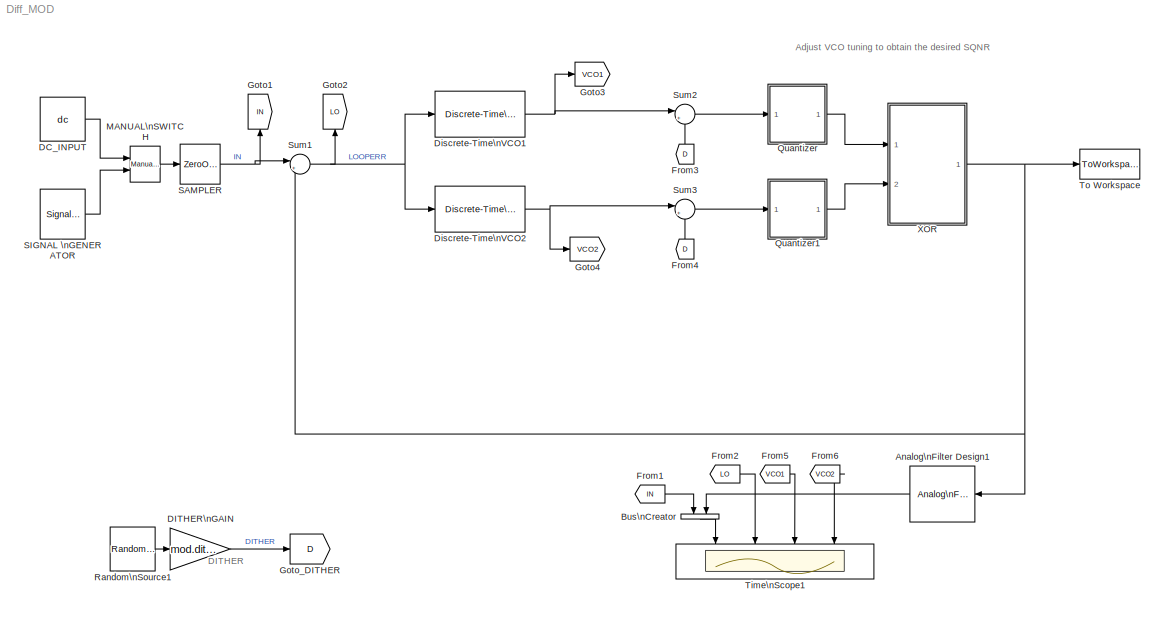
MODEL Diff_MOD
KIND model
BLOCK [Reference] Analog\nFilter Design1  REF=dsparch4/Analog\nFilter Design
  N = 8
  Ports = [1, 1]
  Rp = 2
  Rs = 40
  SID = 627
  SourceBlock = dsparch4/Analog\nFilter Design
  SourceType = Analog Filter Design
  Whi = 80
  Wlo = pi*(Fs/OSR)
  filttype = Lowpass
  method = Butterworth
BLOCK [BusCreator] Bus\nCreator
  DisplayOption = bar
  Inputs = 2
  Ports = [2, 1]
  SID = 635
BLOCK [Constant] DC_INPUT
  OutDataTypeStr = double
  SID = 630
  SampleTime = 1/Fs
  Value = dc
BLOCK [Gain] DITHER\nGAIN
  Gain = mod.dither
  OutDataTypeStr = Inherit: Inherit via internal rule
  ParamDataTypeStr = Inherit: Inherit via internal rule
  SID = 622
  SampleTime = 1/Fs
  SaturateOnIntegerOverflow = off
BLOCK [Reference] Discrete-Time\nVCO1  REF=commsynccomp2/Discrete-Time\nVCO
  Ac = sinamp*2
  Fc = Fs/2
  Kc = sinfreq*24
  Ph = 0
  Ports = [1, 1]
  SID = 423
  SourceBlock = commsynccomp2/Discrete-Time\nVCO
  SourceType = Discrete-Time VCO
  ts = 1/Fs
BLOCK [Reference] Discrete-Time\nVCO2  REF=commsynccomp2/Discrete-Time\nVCO
  Ac = -sinamp*2
  Fc = Fs/2
  Kc = sinfreq*24
  Ph = 1.571
  Ports = [1, 1]
  SID = 605
  SourceBlock = commsynccomp2/Discrete-Time\nVCO
  SourceType = Discrete-Time VCO
  ts = 1/Fs
BLOCK [From] From1
  GotoTag = IN
  SID = 456
BLOCK [From] From2
  GotoTag = LO
  SID = 457
BLOCK [From] From3
  GotoTag = D
  SID = 467
BLOCK [From] From4
  GotoTag = D
  SID = 607
BLOCK [From] From5
  GotoTag = VCO1
  SID = 638
BLOCK [From] From6
  GotoTag = VCO2
  SID = 639
BLOCK [Goto] Goto1
  GotoTag = IN
  SID = 455
BLOCK [Goto] Goto2
  GotoTag = LO
  SID = 463
BLOCK [Goto] Goto3
  GotoTag = VCO1
  SID = 636
BLOCK [Goto] Goto4
  GotoTag = VCO2
  SID = 637
BLOCK [Goto] Goto_DITHER
  GotoTag = D
  SID = 623
BLOCK [Reference] MANUAL\nSWITCH  REF=simulink/Signal\nRouting/Manual Switch
  AttributesFormatString = Double click to\\nselect the desired\\ninput
  Ports = [2, 1]
  SID = 631
  SourceBlock = simulink/Signal\nRouting/Manual Switch
  SourceType = Manual Switch
  action = 0
  sw = 0
  varsize = off
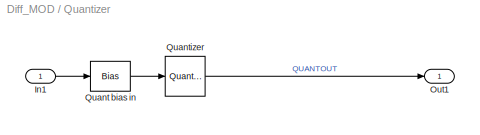
BLOCK [SubSystem] Quantizer
  FunctionWithSeparateData = off
  MaskHideContents = off
  MinAlgLoopOccurrences = off
  Opaque = off
  Ports = [1, 1]
  PropExecContextOutsideSubsystem = off
  RTWSystemCode = Auto
  RequestExecContextInheritance = off
  SID = 532
BLOCK [Inport] Quantizer/In1
  IconDisplay = Port number
  SID = 533
BLOCK [Outport] Quantizer/Out1
  IconDisplay = Port number
  SID = 538
BLOCK [Bias] Quantizer/Quant bias in
  AttributesFormatString = Need offset to give\\nMID-RISE quantiser
  Bias = 1
  SID = 534
  SaturateOnIntegerOverflow = off
BLOCK [Quantizer] Quantizer/Quantizer
  AttributesFormatString = step = 2
  QuantizationInterval = 2
  SID = 536
  SampleTime = 1/Fs
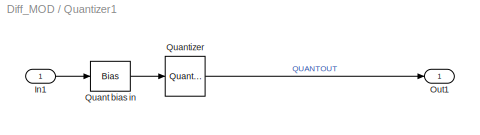
BLOCK [SubSystem] Quantizer1
  FunctionWithSeparateData = off
  MaskHideContents = off
  MinAlgLoopOccurrences = off
  Opaque = off
  Ports = [1, 1]
  PropExecContextOutsideSubsystem = off
  RTWSystemCode = Auto
  RequestExecContextInheritance = off
  SID = 600
BLOCK [Inport] Quantizer1/In1
  IconDisplay = Port number
  SID = 601
BLOCK [Outport] Quantizer1/Out1
  IconDisplay = Port number
  SID = 604
BLOCK [Bias] Quantizer1/Quant bias in
  AttributesFormatString = Need offset to give\\nMID-RISE quantiser
  Bias = 1
  SID = 602
  SaturateOnIntegerOverflow = off
BLOCK [Quantizer] Quantizer1/Quantizer
  AttributesFormatString = step = 2
  QuantizationInterval = 2
  SID = 603
  SampleTime = 1/Fs
BLOCK [Reference] Random\nSource1  REF=dspsrcs4/Random\nSource
  CltLength = 12
  DataType = Double
  IsInherit = off
  MaxVal = 1
  MeanVal = 0
  MinVal = -1
  NormMethod = Ziggurat
  OutComplex = Real
  Ports = [0, 1]
  RepMode = Not repeatable
  SID = 624
  SampFrame = 1
  SampMode = Discrete
  SampTime = 1/Fs
  SourceBlock = dspsrcs4/Random\nSource
  SourceType = Random Source
  SrcType = Uniform
  UserData = DataTag0
  UserDataPersistent = on
  VarVal = 1
  rawSeed = 1
BLOCK [ZeroOrderHold] SAMPLER
  SID = 632
  SampleTime = 1/Fs
BLOCK [SignalGenerator] SIGNAL \nGENERATOR
  Amplitude = sinamp
  Frequency = sinfreq
  Ports = [0, 1]
  SID = 633
  VectorParams1D = off
BLOCK [Sum] Sum1
  IconShape = round
  InputSameDT = off
  Inputs = |+-
  OutDataTypeStr = Inherit: Inherit via internal rule
  Ports = [2, 1]
  SID = 7
  SampleTime = 1/Fs
  SaturateOnIntegerOverflow = off
BLOCK [Sum] Sum2
  IconShape = round
  InputSameDT = off
  Inputs = |++
  OutDataTypeStr = Inherit: Inherit via internal rule
  Ports = [2, 1]
  SID = 468
  SaturateOnIntegerOverflow = off
BLOCK [Sum] Sum3
  IconShape = round
  InputSameDT = off
  Inputs = |++
  OutDataTypeStr = Inherit: Inherit via internal rule
  Ports = [2, 1]
  SID = 608
  SaturateOnIntegerOverflow = off
BLOCK [Scope] Time\nScope1
  DataFormat = Structure
  Floating = off
  MaxDataPoints = 10000
  NumInputPorts = 4
  Ports = [4]
  SID = 459
  SampleTime = 0
  ShowLegends = off
  TimeRange = 0.01
  YMax = 1.1~1~2~0.6
  YMin = -1.1~-3~0~0.15
  ZoomMode = xonly
BLOCK [ToWorkspace] To Workspace
  AttributesFormatString = Export output to\\nworkspace for\\npost-processing
  MaxDataPoints = inf
  Ports = [1]
  SID = 634
  SampleTime = -1
  VariableName = mod_out
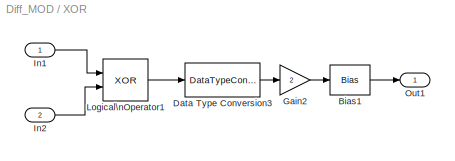
BLOCK [SubSystem] XOR
  FunctionWithSeparateData = off
  MaskHideContents = off
  MinAlgLoopOccurrences = off
  Opaque = off
  Ports = [2, 1]
  PropExecContextOutsideSubsystem = off
  RTWSystemCode = Auto
  RequestExecContextInheritance = off
  SID = 371
BLOCK [Bias] XOR/Bias1
  Bias = -1
  SID = 339
  SaturateOnIntegerOverflow = off
BLOCK [DataTypeConversion] XOR/Data Type Conversion3
  OutDataTypeStr = double
  RndMeth = Floor
  SID = 341
  SampleTime = 1/Fs
  SaturateOnIntegerOverflow = off
BLOCK [Gain] XOR/Gain2
  Gain = 2
  OutDataTypeStr = Inherit: Inherit via internal rule
  ParamDataTypeStr = Inherit: Inherit via internal rule
  SID = 343
  SampleTime = 1/Fs
  SaturateOnIntegerOverflow = off
BLOCK [Inport] XOR/In1
  IconDisplay = Port number
  SID = 372
BLOCK [Inport] XOR/In2
  IconDisplay = Port number
  Port = 2
  SID = 374
BLOCK [Logic] XOR/Logical\nOperator1
  AllPortsSameDT = off
  IconShape = distinctive
  Operator = XOR
  OutDataTypeStr = boolean
  Ports = [2, 1]
  SID = 348
  SampleTime = 1/Fs
BLOCK [Outport] XOR/Out1
  IconDisplay = Port number
  SID = 373
ANNOTATION (root): DITHER \n\n\n\n\n\n
ANNOTATION (root): Adjust VCO tuning to obtain the desired SQNR
LINE Analog\nFilter Design1:1 -> Bus\nCreator:2
LINE Bus\nCreator:1 -> Time\nScope1:1
LINE DC_INPUT:1 -> MANUAL\nSWITCH:1
LINE DITHER\nGAIN:1 -> Goto_DITHER:1
NET Discrete-Time\nVCO1:1 -> Goto3:1, Sum2:1
NET Discrete-Time\nVCO2:1 -> Goto4:1, Sum3:1
LINE From1:1 -> Bus\nCreator:1
LINE From2:1 -> Time\nScope1:2
LINE From3:1 -> Sum2:2
LINE From4:1 -> Sum3:2
LINE From5:1 -> Time\nScope1:3
LINE From6:1 -> Time\nScope1:4
LINE MANUAL\nSWITCH:1 -> SAMPLER:1
LINE Quantizer/In1:1 -> Quantizer/Quant bias in:1
LINE Quantizer/Quant bias in:1 -> Quantizer/Quantizer:1
LINE Quantizer/Quantizer:1 -> Quantizer/Out1:1
LINE Quantizer1/In1:1 -> Quantizer1/Quant bias in:1
LINE Quantizer1/Quant bias in:1 -> Quantizer1/Quantizer:1
LINE Quantizer1/Quantizer:1 -> Quantizer1/Out1:1
LINE Quantizer1:1 -> XOR:2
LINE Quantizer:1 -> XOR:1
LINE Random\nSource1:1 -> DITHER\nGAIN:1
NET SAMPLER:1 -> Goto1:1, Sum1:1
LINE SIGNAL \nGENERATOR:1 -> MANUAL\nSWITCH:2
NET Sum1:1 -> Discrete-Time\nVCO1:1, Discrete-Time\nVCO2:1, Goto2:1
LINE Sum2:1 -> Quantizer:1
LINE Sum3:1 -> Quantizer1:1
LINE XOR/Bias1:1 -> XOR/Out1:1
LINE XOR/Data Type Conversion3:1 -> XOR/Gain2:1
LINE XOR/Gain2:1 -> XOR/Bias1:1
LINE XOR/In1:1 -> XOR/Logical\nOperator1:1
LINE XOR/In2:1 -> XOR/Logical\nOperator1:2
LINE XOR/Logical\nOperator1:1 -> XOR/Data Type Conversion3:1
NET XOR:1 -> Analog\nFilter Design1:1, Sum1:2, To Workspace:1
note: NET lines group one-source signal fan-out (src -> all destinations, sorted); 1:1 wires keep LINE
